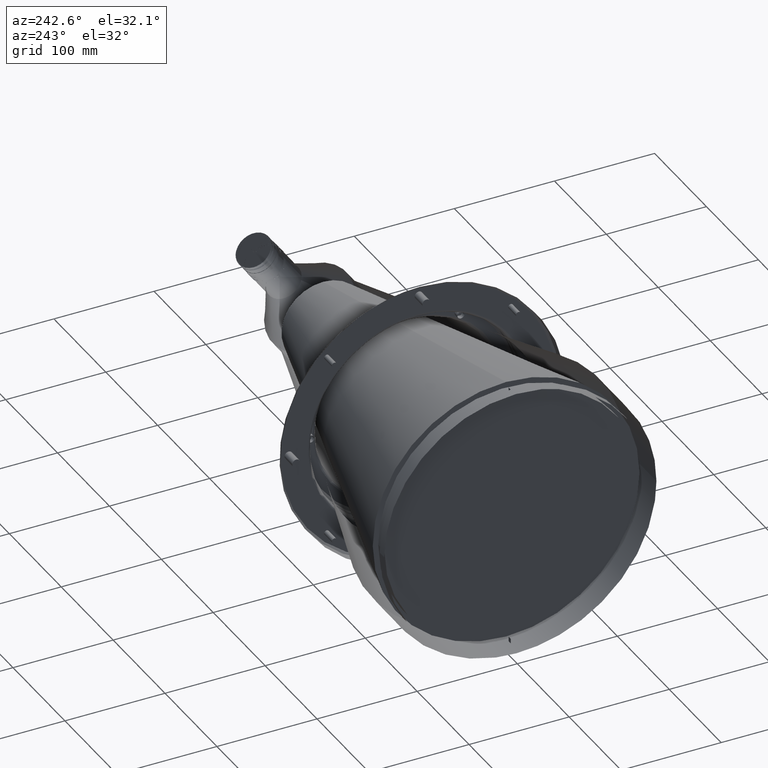
[diagram: clean part render]
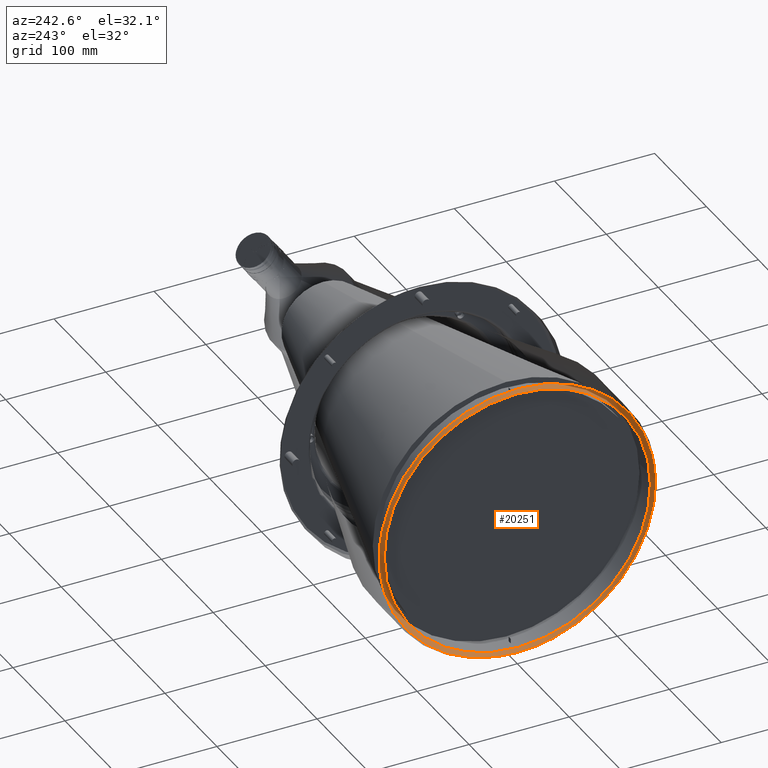
[diagram: same view with one face highlighted and labeled with its STEP entity id]
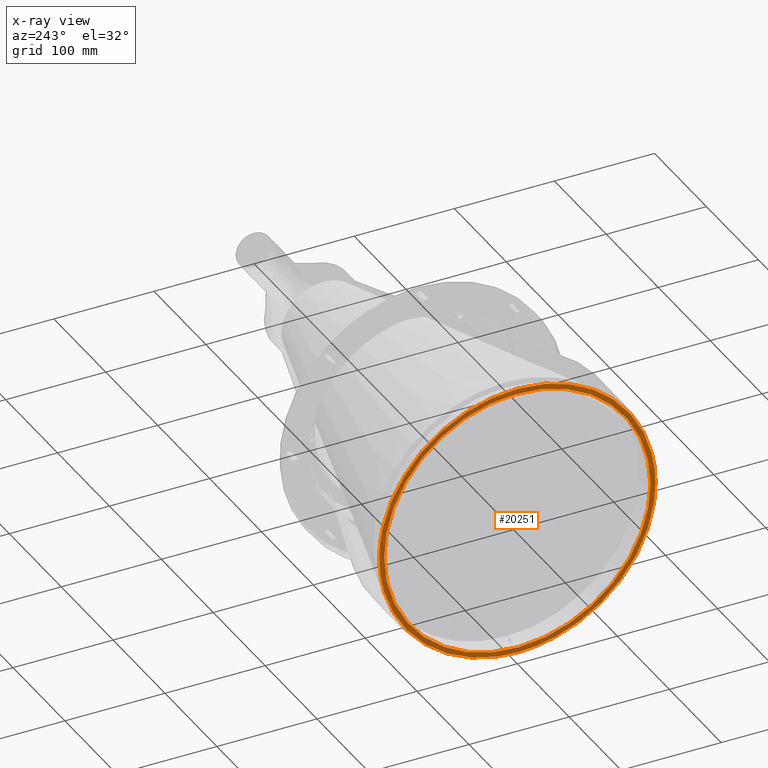
[diagram: x-ray of the same camera — body ghosted, the highlighted face saturated]
A machine part, auxiliary view. The second image highlights one B-rep face of the part: STEP entity #20251.
The next image is the same camera in x-ray: the body ghosted, the highlighted face saturated — about 0% of this face is hidden behind the body in this view.
In plain terms, the highlighted planar face has unit normal (1, 0, 0).
Its self-contained STEP definition (entity closure, byte-faithful):
#60 = CARTESIAN_POINT ( 'NONE',  ( -0.000000000000000000, 128.4407939020106255, 34.41394161928574391 ) ) ;
#148 = CARTESIAN_POINT ( 'NONE',  ( 0.000000000000000000, -25.61821668178403044, 135.6175165710562851 ) ) ;
#928 = CARTESIAN_POINT ( 'NONE',  ( 0.000000000000000000, -137.2344223669452106, 14.66684422491645634 ) ) ;
#943 = CARTESIAN_POINT ( 'NONE',  ( 0.000000000000000000, -131.4884286504362763, -41.94042315112187680 ) ) ;
#1068 = CARTESIAN_POINT ( 'NONE',  ( 5.912110145901629652E-10, 138.0000000010252279, 8.722686265973929902E-10 ) ) ;
#1184 = CARTESIAN_POINT ( 'NONE',  ( 0.000000000000000000, -136.4227292978811761, 20.91109866266123518 ) ) ;
#1308 = CARTESIAN_POINT ( 'NONE',  ( 0.000000000000000000, -21.65885574838818073, -131.1954322898359067 ) ) ;
#1333 = CARTESIAN_POINT ( 'NONE',  ( 0.000000000000000000, 135.1927398056054130, 27.81007901559702589 ) ) ;
#1828 = CARTESIAN_POINT ( 'NONE',  ( -0.000000000000000000, 34.06013946003951531, -133.7465283515853116 ) ) ;
#1835 = CARTESIAN_POINT ( 'NONE',  ( -0.000000000000000000, 131.8334659258581496, -17.35782757019049782 ) ) ;
#2099 = CARTESIAN_POINT ( 'NONE',  ( -0.000000000000000000, 21.65886277775027580, -131.1954676206180181 ) ) ;
#2576 = B_SPLINE_CURVE_WITH_KNOTS ( 'NONE', 3,
 ( #5343, #14186, #13141, #25449, #26249, #46116 ),
 .UNSPECIFIED., .F., .F.,
 ( 4, 2, 4 ),
 ( 0.000000000000000000, 0.04629268813452622200, 0.09258537626905244400 ),
 .UNSPECIFIED. ) ;
#2594 = ORIENTED_EDGE ( 'NONE', *, *, #20509, .T. ) ;
#2732 = CARTESIAN_POINT ( 'NONE',  ( -0.000000000000000000, -8.193635235029267605, -137.8176144945063015 ) ) ;
#2883 = B_SPLINE_CURVE_WITH_KNOTS ( 'NONE', 3,
 ( #1068, #17431, #33806, #50171, #13404, #46122, #9381, #38073, #1333, #30015 ),
 .UNSPECIFIED., .F., .F.,
 ( 4, 2, 2, 2, 4 ),
 ( 0.000000000000000000, 0.01761117297375268051, 0.03522234594750536102, 0.05283351892125803806, 0.07044469189501072204 ),
 .UNSPECIFIED. ) ;
#2885 = CARTESIAN_POINT ( 'NONE',  ( -0.000000000000000000, 131.9744162334862381, -40.38500585696572642 ) ) ;
#2998 = CARTESIAN_POINT ( 'NONE',  ( -0.000000000000000000, -40.38500585717328306, -131.9744162335236410 ) ) ;
#3023 = CARTESIAN_POINT ( 'NONE',  ( -1.697925220561780080E-09, 132.8999999999999773, 4.982847499329429485E-11 ) ) ;
#3072 = B_SPLINE_CURVE_WITH_KNOTS ( 'NONE', 3,
 ( #22197, #13896, #5581, #1828, #30254, #10136, #51455, #46623, #35092, #13638, #46887, #29983, #46356, #26223, #30524, #25954, #6109, #42854, #18446, #34818, #11198, #7444, #39353, #52256, #35612, #11468, #10933, #27818, #36418, #36145, #19245, #51987, #23782, #14687, #15218, #43910, #44171, #31861, #47687, #2885, #19771, #35353, #48495, #48232, #47964, #40148, #31595, #3420, #52521, #43378, #11731, #51721 ),
 .UNSPECIFIED., .F., .F.,
 ( 4, 2, 2, 2, 2, 2, 2, 2, 2, 2, 2, 2, 2, 2, 2, 2, 2, 2, 2, 2, 2, 2, 2, 2, 2, 4 ),
 ( 0.09258537626905244400, 0.1492987902522369126, 0.1776554972438290914, 0.2060122042354212701, 0.2343689112270134212, 0.2627256182186055722, 0.2910823252101977232, 0.3194390322017898187, 0.3761524461849740097, 0.4328658601681581453, 0.4895792741513423918, 0.5179359811429344873, 0.5462926881345264718, 0.5746493951261186783, 0.6030061021177106628, 0.6313628091093026473, 0.6597195161008946318, 0.7164329300840790449, 0.7731463440672630139, 0.8015030510588552204, 0.8298597580504472049, 0.8582164650420394114, 0.8865731720336316179, 0.9149298790252238245, 0.9432865860168158090, 1.000000000000000000 ),
 .UNSPECIFIED. ) ;
#3105 = CARTESIAN_POINT ( 'NONE',  ( -0.000000000000000000, 54.59055278217290663, 126.8128483223177341 ) ) ;
#3109 = ORIENTED_EDGE ( 'NONE', *, *, #38242, .T. ) ;
#3287 = CARTESIAN_POINT ( 'NONE',  ( -0.000000000000000000, -8.695131537352585482, 132.6866670147687728 ) ) ;
#3375 = CARTESIAN_POINT ( 'NONE',  ( -0.000000000000000000, 14.09327695958407212, 137.2945105908393941 ) ) ;
#3420 = CARTESIAN_POINT ( 'NONE',  ( -0.000000000000000000, 137.0425839116990687, -16.35662982615571082 ) ) ;
#3548 = CARTESIAN_POINT ( 'NONE',  ( -0.000000000000000000, 132.6866670147690570, 8.695131538608995569 ) ) ;
#3641 = CARTESIAN_POINT ( 'NONE',  ( 0.000000000000000000, 104.8429245458442267, 89.75734443646993554 ) ) ;
#3809 = CARTESIAN_POINT ( 'NONE',  ( -0.000000000000000000, 87.67525554400332055, 99.97202849422306770 ) ) ;
#3899 = CARTESIAN_POINT ( 'NONE',  ( -0.000000000000000000, -23.55141177482467185, 135.9917341099875898 ) ) ;
#4075 = CARTESIAN_POINT ( 'NONE',  ( 0.000000000000000000, 34.41393211468472657, 128.4407625628291214 ) ) ;
#4168 = CARTESIAN_POINT ( 'NONE',  ( -0.000000000000000000, -70.54766890643956856, 118.6231920991686053 ) ) ;
#4188 = CARTESIAN_POINT ( 'NONE',  ( 0.000000000000000000, -102.0161032878143317, -93.02443326274126889 ) ) ;
#4590 = CARTESIAN_POINT ( 'NONE',  ( 1.341486575031484387E-09, -136.5432461597106055, -19.99889680758062127 ) ) ;
#4711 = CARTESIAN_POINT ( 'NONE',  ( 0.000000000000000000, -63.15293375053128244, -122.7701558035917913 ) ) ;
#4933 = CARTESIAN_POINT ( 'NONE',  ( -1.697925220561780080E-09, 132.8999999999999773, 4.982847499329429485E-11 ) ) ;
#5162 = FACE_OUTER_BOUND ( 'NONE', #22728, .T. ) ;
#5224 = CARTESIAN_POINT ( 'NONE',  ( -0.000000000000000000, -34.46725236691752059, -133.6421926202634154 ) ) ;
#5343 = CARTESIAN_POINT ( 'NONE',  ( 6.027289656070121068E-10, -1.706896055986645007E-14, -138.0000000010219878 ) ) ;
#5467 = CARTESIAN_POINT ( 'NONE',  ( 0.000000000000000000, -108.2850043972621279, 85.65042409421361924 ) ) ;
#5581 = CARTESIAN_POINT ( 'NONE',  ( -0.000000000000000000, 28.08365593259351201, -135.1743410265075624 ) ) ;
#5588 = CARTESIAN_POINT ( 'NONE',  ( 0.000000000000000000, 42.74369321880987371, -125.9139554456454846 ) ) ;
#5854 = CARTESIAN_POINT ( 'NONE',  ( -0.000000000000000000, -30.19615184340132075, -129.4972952413631333 ) ) ;
#6059 = CARTESIAN_POINT ( 'NONE',  ( -0.000000000000000000, 133.6664503805918116, 34.37606262528109369 ) ) ;
#6109 = CARTESIAN_POINT ( 'NONE',  ( 0.000000000000000000, 73.47104358531457535, -116.8880338383540476 ) ) ;
#6325 = CARTESIAN_POINT ( 'NONE',  ( -0.000000000000000000, 132.5592274306712284, 38.42472828389390571 ) ) ;
#6379 = CARTESIAN_POINT ( 'NONE',  ( -0.000000000000000000, 125.9139786750542953, -42.74373509874667576 ) ) ;
#6479 = CARTESIAN_POINT ( 'NONE',  ( -0.000000000000000000, -16.35662982783611596, -137.0425839114991504 ) ) ;
#6655 = CARTESIAN_POINT ( 'NONE',  ( 0.000000000000000000, 105.4941500093786289, -80.94647938701453427 ) ) ;
#6780 = CARTESIAN_POINT ( 'NONE',  ( -1.697925220561780080E-09, -132.8999999999999773, -4.998622642607310721E-11 ) ) ;
#6868 = CARTESIAN_POINT ( 'NONE',  ( 0.000000000000000000, 134.1735730191497282, 32.34016298523741995 ) ) ;
#7315 = CARTESIAN_POINT ( 'NONE',  ( 0.000000000000000000, -66.48700942406212278, 115.1556589542360598 ) ) ;
#7400 = CARTESIAN_POINT ( 'NONE',  ( -0.000000000000000000, 78.40958872733904172, 113.5796970991251840 ) ) ;
#7444 = CARTESIAN_POINT ( 'NONE',  ( -0.000000000000000000, 97.44225042702404949, -97.74048721563558217 ) ) ;
#7557 = VERTEX_POINT ( 'NONE', #31779 ) ;
#7578 = CARTESIAN_POINT ( 'NONE',  ( 0.000000000000000000, 115.1556589541807369, 66.48700942422621551 ) ) ;
#7664 = CARTESIAN_POINT ( 'NONE',  ( 0.000000000000000000, -87.70674297488723425, 106.5642083568448015 ) ) ;
#7718 = CARTESIAN_POINT ( 'NONE',  ( 0.000000000000000000, -121.1180307576038189, -54.87959649435781273 ) ) ;
#7839 = CARTESIAN_POINT ( 'NONE',  ( -0.000000000000000000, 77.45410287932837434, 108.0843136773688684 ) ) ;
#7931 = CARTESIAN_POINT ( 'NONE',  ( 0.000000000000000000, 24.48111171181885837, 135.8274350421868064 ) ) ;
#8104 = CARTESIAN_POINT ( 'NONE',  ( 0.000000000000000000, 99.97200317872859898, 87.67523476897289925 ) ) ;
#8197 = CARTESIAN_POINT ( 'NONE',  ( -0.000000000000000000, -59.44327274889314339, 124.5589493482974319 ) ) ;
#8215 = CARTESIAN_POINT ( 'NONE',  ( 0.000000000000000000, -96.28139726270100596, -98.88426311413559233 ) ) ;
#8457 = CARTESIAN_POINT ( 'NONE',  ( 0.000000000000000000, 65.89424629458655147, 121.2697436888730778 ) ) ;
#8475 = CARTESIAN_POINT ( 'NONE',  ( -0.000000000000000000, -112.3194339383256022, -80.28180432957920232 ) ) ;
#8736 = CARTESIAN_POINT ( 'NONE',  ( 0.000000000000000000, -72.06306459353785954, -117.7078631816502536 ) ) ;
#9000 = CARTESIAN_POINT ( 'NONE',  ( 0.000000000000000000, -129.4913457806612200, -47.75160844209984390 ) ) ;
#9239 = CARTESIAN_POINT ( 'NONE',  ( 0.000000000000000000, -125.6875879899443902, 57.01805209264812646 ) ) ;
#9381 = CARTESIAN_POINT ( 'NONE',  ( 0.000000000000000000, 136.5241168078631233, 20.28974601618120133 ) ) ;
#9618 = CARTESIAN_POINT ( 'NONE',  ( -0.000000000000000000, 99.97202849449982409, -87.67525554360651086 ) ) ;
#9718 = FACE_BOUND ( 'NONE', #43645, .T. ) ;
#9884 = CARTESIAN_POINT ( 'NONE',  ( 0.000000000000000000, 54.87959649419052255, -121.1180307577402431 ) ) ;
#10136 = CARTESIAN_POINT ( 'NONE',  ( -0.000000000000000000, 39.98151117245998165, -132.0972126025828857 ) ) ;
#10146 = CARTESIAN_POINT ( 'NONE',  ( 0.000000000000000000, -34.41396353490189597, -128.4407513207275713 ) ) ;
#10413 = CARTESIAN_POINT ( 'NONE',  ( 0.000000000000000000, -58.81025641100195855, -119.2589670712533945 ) ) ;
#10675 = CARTESIAN_POINT ( 'NONE',  ( 0.000000000000000000, -108.0843036058042230, -77.45405605940683813 ) ) ;
#10777 = CARTESIAN_POINT ( 'NONE',  ( 0.000000000000000000, -38.41890234766105294, -132.5601449734127186 ) ) ;
#10933 = CARTESIAN_POINT ( 'NONE',  ( 0.000000000000000000, 107.0578360728931528, -87.10233762398176793 ) ) ;
#11198 = CARTESIAN_POINT ( 'NONE',  ( 0.000000000000000000, 93.02443326242546107, -102.0161032878891945 ) ) ;
#11331 = CARTESIAN_POINT ( 'NONE',  ( -0.000000000000000000, 66.48702486235359288, 115.1556878357319391 ) ) ;
#11422 = CARTESIAN_POINT ( 'NONE',  ( -0.000000000000000000, -90.90735679195569219, 103.8473975690020978 ) ) ;
#11468 = CARTESIAN_POINT ( 'NONE',  ( -0.000000000000000000, 105.7511918474654493, -88.68418866353616181 ) ) ;
#11596 = CARTESIAN_POINT ( 'NONE',  ( 0.000000000000000000, 21.65882337634905497, 131.1954403983514510 ) ) ;
#11684 = CARTESIAN_POINT ( 'NONE',  ( 0.000000000000000000, -72.34278703040524761, 117.5370245481542639 ) ) ;
#11731 = CARTESIAN_POINT ( 'NONE',  ( -0.000000000000000000, 138.0000000009699477, -4.101366408664305574 ) ) ;
#11862 = CARTESIAN_POINT ( 'NONE',  ( 0.000000000000000000, -119.2589842282480816, 58.81022778575875520 ) ) ;
#11952 = CARTESIAN_POINT ( 'NONE',  ( 0.000000000000000000, 12.00100520724969400, 137.4932219711184871 ) ) ;
#12009 = CARTESIAN_POINT ( 'NONE',  ( -0.000000000000000000, -119.2589988401419561, -58.81027339373068230 ) ) ;
#12128 = CARTESIAN_POINT ( 'NONE',  ( 0.000000000000000000, -54.87962791723066402, 121.1180195140651392 ) ) ;
#12219 = CARTESIAN_POINT ( 'NONE',  ( -0.000000000000000000, 67.73254390346494347, 120.2527359052614315 ) ) ;
#12236 = CARTESIAN_POINT ( 'NONE',  ( 0.000000000000000000, -127.2357566906142097, -53.47205233749576081 ) ) ;
#12483 = CARTESIAN_POINT ( 'NONE',  ( 0.000000000000000000, 81.82695134407755688, 111.1430823912360637 ) ) ;
#12736 = CARTESIAN_POINT ( 'NONE',  ( -0.000000000000000000, -124.8062853456470975, 58.92220609125895692 ) ) ;
#12754 = CARTESIAN_POINT ( 'NONE',  ( 0.000000000000000000, -87.10233762369033172, -107.0578360733061061 ) ) ;
#12840 = EDGE_CURVE ( 'NONE', #7557, #13879, #2883, .T. ) ;
#13018 = CARTESIAN_POINT ( 'NONE',  ( -0.000000000000000000, -133.7465283515053613, -34.06013946085074195 ) ) ;
#13141 = CARTESIAN_POINT ( 'NONE',  ( -0.000000000000000000, 6.689144565867422010, -137.8784811816391027 ) ) ;
#13263 = CARTESIAN_POINT ( 'NONE',  ( -0.000000000000000000, -133.4282031933128962, 35.28947039304586752 ) ) ;
#13280 = CARTESIAN_POINT ( 'NONE',  ( -0.000000000000000000, -78.92424173116705788, -113.2217837424102100 ) ) ;
#13404 = CARTESIAN_POINT ( 'NONE',  ( 0.000000000000000000, 137.4370046213084038, 12.70990639799095945 ) ) ;
#13479 = DIRECTION ( 'NONE',  ( 1.000000000000000000, 0.000000000000000000, 0.000000000000000000 ) ) ;
#13638 = CARTESIAN_POINT ( 'NONE',  ( -0.000000000000000000, 51.57470420258488275, -128.0165964319457430 ) ) ;
#13645 = CARTESIAN_POINT ( 'NONE',  ( 0.000000000000000000, -70.21649186372862061, -112.9202893919646726 ) ) ;
#13791 = CARTESIAN_POINT ( 'NONE',  ( -0.000000000000000000, -136.9953592448837298, 16.75382987654889178 ) ) ;
#13879 = VERTEX_POINT ( 'NONE', #44482 ) ;
#13896 = CARTESIAN_POINT ( 'NONE',  ( 0.000000000000000000, 24.05193157855004671, -135.9496681051631413 ) ) ;
#13904 = CARTESIAN_POINT ( 'NONE',  ( -0.000000000000000000, 70.21651187734080679, -112.9203193441026798 ) ) ;
#14021 = CARTESIAN_POINT ( 'NONE',  ( 0.000000000000000000, -131.1954355490526041, 21.65883936216405914 ) ) ;
#14169 = CARTESIAN_POINT ( 'NONE',  ( -0.000000000000000000, -97.05202515867142665, -90.89698275300283115 ) ) ;
#14186 = CARTESIAN_POINT ( 'NONE',  ( 0.000000000000000000, 3.347506788957276935, -138.0000000009749215 ) ) ;
#14377 = CARTESIAN_POINT ( 'NONE',  ( 0.000000000000000000, 117.2744359224602988, 72.85848547826925881 ) ) ;
#14434 = CARTESIAN_POINT ( 'NONE',  ( 0.000000000000000000, 66.48697925504585271, -115.1556732233982245 ) ) ;
#14642 = CARTESIAN_POINT ( 'NONE',  ( -0.000000000000000000, 112.6253866306888654, 79.85717021162115259 ) ) ;
#14687 = CARTESIAN_POINT ( 'NONE',  ( -0.000000000000000000, 120.8380028437643006, -66.77555398425774058 ) ) ;
#14696 = CARTESIAN_POINT ( 'NONE',  ( 0.000000000000000000, 112.9203092729199938, -70.21646505687435535 ) ) ;
#14795 = CARTESIAN_POINT ( 'NONE',  ( 0.000000000000000000, -20.41685324044776095, -136.4968130887677944 ) ) ;
#14995 = ORIENTED_EDGE ( 'NONE', *, *, #38616, .T. ) ;
#15021 = EDGE_CURVE ( 'NONE', #24970, #41927, #16081, .T. ) ;
#15088 = CARTESIAN_POINT ( 'NONE',  ( 0.000000000000000000, -132.8999999999999773, 4.352455105379729794 ) ) ;
#15218 = CARTESIAN_POINT ( 'NONE',  ( 0.000000000000000000, 122.7701558036409040, -63.15293375034048040 ) ) ;
#15226 = CARTESIAN_POINT ( 'NONE',  ( -0.000000000000000000, -132.6866833915766790, -8.694981975011645048 ) ) ;
#15354 = CARTESIAN_POINT ( 'NONE',  ( -0.000000000000000000, -115.1556878355915359, 66.48702486250324739 ) ) ;
#15445 = CARTESIAN_POINT ( 'NONE',  ( -0.000000000000000000, -86.07387018331557726, 107.8874352180945095 ) ) ;
#15604 = CARTESIAN_POINT ( 'NONE',  ( -0.000000000000000000, -137.0278488518633253, -16.69059446280801851 ) ) ;
#15621 = CARTESIAN_POINT ( 'NONE',  ( -0.000000000000000000, -34.41394162029766335, 128.4407939018150557 ) ) ;
#15707 = CARTESIAN_POINT ( 'NONE',  ( -0.000000000000000000, 42.80638136170181696, 131.2602392752137632 ) ) ;
#15880 = CARTESIAN_POINT ( 'NONE',  ( -0.000000000000000000, -70.21648325240981592, 112.9203365015574434 ) ) ;
#15965 = CARTESIAN_POINT ( 'NONE',  ( -0.000000000000000000, 106.1967957008379102, 88.15125512450249801 ) ) ;
#16081 = B_SPLINE_CURVE_WITH_KNOTS ( 'NONE', 3,
 ( #43388, #46895, #42343, #1835, #51200, #18724, #34826, #6379, #34298, #22987, #22204, #34558, #14696, #38572, #6655, #9618, #30531, #17926, #25962, #50672, #34037, #13904, #14434, #30262, #9884, #22718, #5588, #46630, #38824, #2099, #50409, #21937, #18454, #39088, #38306, #26230, #1308, #5854, #10146, #18186, #30799, #47157, #10413, #51466, #13645, #26751, #42599, #50935, #29990, #14169, #31060, #26497, #10675, #27026, #28089, #12009, #7718, #28358, #47972, #35362, #43661, #31329, #52265, #15226, #24057, #23792 ),
 .UNSPECIFIED., .F., .F.,
 ( 4, 2, 2, 2, 2, 2, 2, 2, 2, 2, 2, 2, 2, 2, 2, 2, 2, 2, 2, 2, 2, 2, 2, 2, 2, 2, 2, 2, 2, 2, 2, 2, 4 ),
 ( 0.5000000000000000000, 0.5156250000000000000, 0.5312500000000000000, 0.5468750000000000000, 0.5625000000000000000, 0.5781250000000000000, 0.5937500000000000000, 0.6093750000000000000, 0.6250000000000000000, 0.6406250000000000000, 0.6562500000000000000, 0.6718750000000000000, 0.6875000000000000000, 0.7031250000000000000, 0.7187500000000000000, 0.7343750000000000000, 0.7500000000000000000, 0.7656250000000000000, 0.7812500000000000000, 0.7968750000000000000, 0.8125000000000000000, 0.8281250000000000000, 0.8437500000000000000, 0.8593750000000000000, 0.8750000000000000000, 0.8906250000000000000, 0.9062500000000000000, 0.9218750000000000000, 0.9375000000000000000, 0.9531250000000000000, 0.9687500000000000000, 0.9843750000000000000, 1.000000000000000000 ),
 .UNSPECIFIED. ) ;
#16146 = CARTESIAN_POINT ( 'NONE',  ( 0.000000000000000000, -4.352305556209210557, 132.8999836257002016 ) ) ;
#16147 = VERTEX_POINT ( 'NONE', #25648 ) ;
#16239 = CARTESIAN_POINT ( 'NONE',  ( -0.000000000000000000, -31.79013603041980218, 134.3541752273262944 ) ) ;
#16410 = CARTESIAN_POINT ( 'NONE',  ( 0.000000000000000000, 121.1180195136824835, 54.87962791812452679 ) ) ;
#16501 = CARTESIAN_POINT ( 'NONE',  ( 0.000000000000000000, -77.63065755820269942, 114.1134913260201671 ) ) ;
#16782 = CARTESIAN_POINT ( 'NONE',  ( -0.000000000000000000, -122.9205974279798141, -62.75933342215346755 ) ) ;
#17046 = CARTESIAN_POINT ( 'NONE',  ( -0.000000000000000000, -135.1743410263745488, -28.08365593378812264 ) ) ;
#17296 = CARTESIAN_POINT ( 'NONE',  ( -0.000000000000000000, -97.74048721525726080, -97.44225042759059363 ) ) ;
#17431 = CARTESIAN_POINT ( 'NONE',  ( 0.000000000000000000, 138.0000000009700045, 2.546990614048323831 ) ) ;
#17545 = CARTESIAN_POINT ( 'NONE',  ( 0.000000000000000000, -122.9571342918519434, 62.68940554069461513 ) ) ;
#17808 = CARTESIAN_POINT ( 'NONE',  ( 0.000000000000000000, -135.3269035891422334, 27.11146304888261582 ) ) ;
#17926 = CARTESIAN_POINT ( 'NONE',  ( -0.000000000000000000, 90.89696984040311634, -97.05203575591248466 ) ) ;
#18186 = CARTESIAN_POINT ( 'NONE',  ( -0.000000000000000000, -42.74370367923940961, -125.9139899169235122 ) ) ;
#18339 = EDGE_CURVE ( 'NONE', #41927, #24970, #25975, .T. ) ;
#18402 = CARTESIAN_POINT ( 'NONE',  ( 0.000000000000000000, 127.7245391918158077, 52.29573608829438314 ) ) ;
#18446 = CARTESIAN_POINT ( 'NONE',  ( 0.000000000000000000, 83.57862747348065113, -109.8883002100641306 ) ) ;
#18454 = CARTESIAN_POINT ( 'NONE',  ( 0.000000000000000000, 4.352272222047130157, -132.8999819883081273 ) ) ;
#18548 = CARTESIAN_POINT ( 'NONE',  ( -0.000000000000000000, -4.101366410205684154, -138.0000000009745236 ) ) ;
#18724 = CARTESIAN_POINT ( 'NONE',  ( -0.000000000000000000, 129.4972871328290012, -30.19618421543802000 ) ) ;
#19020 = CARTESIAN_POINT ( 'NONE',  ( -1.697925220561780080E-09, -132.8999999999999773, -4.998622642607310721E-11 ) ) ;
#19245 = CARTESIAN_POINT ( 'NONE',  ( 0.000000000000000000, 114.3821177006974210, -77.23293311452009391 ) ) ;
#19380 = CARTESIAN_POINT ( 'NONE',  ( -0.000000000000000000, -125.9139786743691189, 42.74373510054594760 ) ) ;
#19465 = CARTESIAN_POINT ( 'NONE',  ( -0.000000000000000000, -4.775831873367671676, 137.9333994126001244 ) ) ;
#19643 = CARTESIAN_POINT ( 'NONE',  ( 0.000000000000000000, -42.74372559403334293, 125.9139473357768253 ) ) ;
#19731 = CARTESIAN_POINT ( 'NONE',  ( 0.000000000000000000, -0.5787325899803076323, 138.0147448782914807 ) ) ;
#19771 = CARTESIAN_POINT ( 'NONE',  ( 0.000000000000000000, 132.5601449734230357, -38.41890234748672128 ) ) ;
#19900 = CARTESIAN_POINT ( 'NONE',  ( -0.000000000000000000, -90.89695802556458659, 97.05204757077896716 ) ) ;
#19991 = CARTESIAN_POINT ( 'NONE',  ( 0.000000000000000000, 60.29376893007656690, 124.1494859182880646 ) ) ;
#20165 = CARTESIAN_POINT ( 'NONE',  ( -0.000000000000000000, -99.97202849449978146, 87.67525554366613960 ) ) ;
#20251 = ADVANCED_FACE ( 'NONE', ( #9718, #5162 ), #50242, .T. ) ;
#20253 = CARTESIAN_POINT ( 'NONE',  ( -0.000000000000000000, 32.69638473459164629, 134.0872114739054553 ) ) ;
#20429 = CARTESIAN_POINT ( 'NONE',  ( 0.000000000000000000, -112.9203092724852411, 70.21646505746386424 ) ) ;
#20509 = EDGE_CURVE ( 'NONE', #21116, #16147, #39840, .T. ) ;
#20519 = CARTESIAN_POINT ( 'NONE',  ( -0.000000000000000000, -17.32650040968654181, 136.9241341078467542 ) ) ;
#20535 = CARTESIAN_POINT ( 'NONE',  ( -0.000000000000000000, -93.30393079566222525, -101.6985931970703660 ) ) ;
#20799 = CARTESIAN_POINT ( 'NONE',  ( -0.000000000000000000, -132.0972126022266764, -39.98151117390174392 ) ) ;
#21044 = CARTESIAN_POINT ( 'NONE',  ( -0.000000000000000000, -129.6568227613175281, 47.30267603215782657 ) ) ;
#21062 = CARTESIAN_POINT ( 'NONE',  ( -0.000000000000000000, -128.0165964314660414, -51.57470420402129463 ) ) ;
#21116 = VERTEX_POINT ( 'NONE', #32772 ) ;
#21306 = CARTESIAN_POINT ( 'NONE',  ( -0.000000000000000000, -99.99312655531943506, 95.13042850158907981 ) ) ;
#21322 = CARTESIAN_POINT ( 'NONE',  ( -0.000000000000000000, -104.7323651925756849, -89.95515931159263801 ) ) ;
#21507 = B_SPLINE_CURVE_WITH_KNOTS ( 'NONE', 3,
 ( #25073, #49527, #17046, #13018, #45732, #20799, #943, #45207, #9000, #21062, #12236, #40913, #45999, #16782, #25333, #28581, #44947, #8475, #41706, #21322, #4188, #17296, #8215, #20535, #33675, #24814, #12754, #36913, #29103, #13280, #50046, #45466, #8736, #41442, #4711, #41970, #31163, #26593, #47529, #2998, #10777, #5224, #35462, #27123, #43488, #51566, #14795, #6479, #30630, #2732, #18548, #21574 ),
 .UNSPECIFIED., .F., .F.,
 ( 4, 2, 2, 2, 2, 2, 2, 2, 2, 2, 2, 2, 2, 2, 2, 2, 2, 2, 2, 2, 2, 2, 2, 2, 2, 4 ),
 ( 0.09258537627606561182, 0.1492987902588113758, 0.1776554972501842578, 0.2060122042415571675, 0.2343689112329300772, 0.2627256182243029592, 0.2910823252156757857, 0.3194390322070488342, 0.3761524461897946536, 0.4328658601725405841, 0.4895792741552864036, 0.5179359811466595076, 0.5462926881380324451, 0.5746493951294053826, 0.6030061021207784311, 0.6313628091121514796, 0.6597195161035243061, 0.7164329300862701810, 0.7731463440690160560, 0.8015030510603888825, 0.8298597580517621530, 0.8582164650431349795, 0.8865731720345080280, 0.9149298790258810765, 0.9432865860172539030, 1.000000000000000000 ),
 .UNSPECIFIED. ) ;
#21557 = CARTESIAN_POINT ( 'NONE',  ( 0.000000000000000000, -128.1584960282846737, 51.22315400391206452 ) ) ;
#21574 = CARTESIAN_POINT ( 'NONE',  ( 6.027289656070121068E-10, -1.706896055986645007E-14, -138.0000000010219878 ) ) ;
#21817 = CARTESIAN_POINT ( 'NONE',  ( 0.000000000000000000, -97.05273073022229369, 98.12833176718129380 ) ) ;
#21937 = CARTESIAN_POINT ( 'NONE',  ( -0.000000000000000000, 8.695164872699340464, -132.6866653768495041 ) ) ;
#22060 = CARTESIAN_POINT ( 'NONE',  ( -0.000000000000000000, -132.6866295268946203, 8.695161342510710156 ) ) ;
#22197 = CARTESIAN_POINT ( 'NONE',  ( 1.337790636725743629E-09, 19.99889680756453103, -136.5432461596798817 ) ) ;
#22204 = CARTESIAN_POINT ( 'NONE',  ( 0.000000000000000000, 119.2589842282480816, -58.81022778569884935 ) ) ;
#22718 = CARTESIAN_POINT ( 'NONE',  ( -0.000000000000000000, 46.83765982854225740, -124.4491489837228357 ) ) ;
#22728 = EDGE_LOOP ( 'NONE', ( #26287, #3109, #2594, #51952, #14995, #33855 ) ) ;
#22987 = CARTESIAN_POINT ( 'NONE',  ( -0.000000000000000000, 121.1180497700383398, -54.87964044958533805 ) ) ;
#23197 = CARTESIAN_POINT ( 'NONE',  ( 0.000000000000000000, 129.9773164540940797, 46.41478808368994891 ) ) ;
#23379 = CARTESIAN_POINT ( 'NONE',  ( -0.000000000000000000, 42.74373509945639427, 125.9139786748202710 ) ) ;
#23649 = CARTESIAN_POINT ( 'NONE',  ( -0.000000000000000000, -46.83762840550193118, 124.4491602273963480 ) ) ;
#23734 = CARTESIAN_POINT ( 'NONE',  ( 0.000000000000000000, 96.22680451427410731, 98.93844014703049083 ) ) ;
#23782 = CARTESIAN_POINT ( 'NONE',  ( 0.000000000000000000, 117.7078631809557265, -72.06306459439053924 ) ) ;
#23792 = CARTESIAN_POINT ( 'NONE',  ( -1.697925220561780080E-09, -132.8999999999999773, -4.998622642607310721E-11 ) ) ;
#23838 = CARTESIAN_POINT ( 'NONE',  ( 1.337790636725743629E-09, 19.99889680756453103, -136.5432461596798817 ) ) ;
#23916 = CARTESIAN_POINT ( 'NONE',  ( 0.000000000000000000, 125.9139473355817813, 42.74372559504467262 ) ) ;
#24003 = CARTESIAN_POINT ( 'NONE',  ( -0.000000000000000000, -81.06489072313084421, 111.7001207769915965 ) ) ;
#24057 = CARTESIAN_POINT ( 'NONE',  ( -0.000000000000000000, -132.8999999999999488, -4.352822658412112133 ) ) ;
#24178 = CARTESIAN_POINT ( 'NONE',  ( -0.000000000000000000, -21.65882976319613107, 131.1954725181216190 ) ) ;
#24273 = CARTESIAN_POINT ( 'NONE',  ( 0.000000000000000000, 76.67101096025240281, 114.7604406946658173 ) ) ;
#24427 = CARTESIAN_POINT ( 'NONE',  ( -0.000000000000000000, -137.3924059041956980, -13.36068209668116680 ) ) ;
#24441 = CARTESIAN_POINT ( 'NONE',  ( -0.000000000000000000, 112.9203365017191345, 70.21648325216794717 ) ) ;
#24534 = CARTESIAN_POINT ( 'NONE',  ( -0.000000000000000000, 7.814674080144500934, 137.7946490522046190 ) ) ;
#24794 = CARTESIAN_POINT ( 'NONE',  ( 0.000000000000000000, -119.9682337110790371, 68.23521713494693586 ) ) ;
#24814 = CARTESIAN_POINT ( 'NONE',  ( -0.000000000000000000, -88.68418866326200600, -105.7511918478506630 ) ) ;
#24970 = VERTEX_POINT ( 'NONE', #4933 ) ;
#25073 = CARTESIAN_POINT ( 'NONE',  ( 1.341486575031484387E-09, -136.5432461597106055, -19.99889680758062127 ) ) ;
#25333 = CARTESIAN_POINT ( 'NONE',  ( 0.000000000000000000, -121.9742708475475013, -64.57919148478148941 ) ) ;
#25449 = CARTESIAN_POINT ( 'NONE',  ( -0.000000000000000000, 13.36068209559344666, -137.3924059042954866 ) ) ;
#25648 = CARTESIAN_POINT ( 'NONE',  ( 1.341486575031484387E-09, -136.5432461597106055, -19.99889680758062127 ) ) ;
#25954 = CARTESIAN_POINT ( 'NONE',  ( -0.000000000000000000, 69.96983786076786771, -119.0170226749803106 ) ) ;
#25962 = CARTESIAN_POINT ( 'NONE',  ( 0.000000000000000000, 87.67520796393374383, -99.97202305902882813 ) ) ;
#25975 = B_SPLINE_CURVE_WITH_KNOTS ( 'NONE', 3,
 ( #6780, #15088, #22060, #50787, #14021, #31726, #52381, #19380, #52909, #48626, #11862, #15354, #20429, #48362, #27688, #20165, #44042, #19900, #49152, #40012, #28211, #15880, #7315, #28475, #12128, #23649, #19643, #15621, #44574, #24178, #36268, #3287, #16146, #40536, #31989, #44835, #11596, #43780, #4075, #23379, #32524, #36012, #32250, #11331, #39747, #7839, #52646, #3809, #27948, #44308, #8104, #48896, #36543, #24441, #7578, #40799, #16410, #36808, #23916, #60, #32776, #40275, #27418, #3548, #35749, #3023 ),
 .UNSPECIFIED., .F., .F.,
 ( 4, 2, 2, 2, 2, 2, 2, 2, 2, 2, 2, 2, 2, 2, 2, 2, 2, 2, 2, 2, 2, 2, 2, 2, 2, 2, 2, 2, 2, 2, 2, 2, 4 ),
 ( 0.000000000000000000, 0.01562499999999998612, 0.03124999999999996531, 0.04687499999999994449, 0.06249999999999992367, 0.07812499999999993061, 0.09374999999999995837, 0.1093749999999999861, 0.1250000000000000000, 0.1406250000000000278, 0.1562500000000000833, 0.1718750000000001110, 0.1875000000000001388, 0.2031250000000001388, 0.2187500000000001665, 0.2343750000000001665, 0.2500000000000002220, 0.2656250000000002220, 0.2812500000000001665, 0.2968750000000001665, 0.3125000000000001665, 0.3281250000000001665, 0.3437500000000001110, 0.3593750000000001110, 0.3750000000000001110, 0.3906250000000001110, 0.4062500000000000555, 0.4218750000000000555, 0.4375000000000000555, 0.4531250000000000555, 0.4687500000000000000, 0.4843750000000000000, 0.5000000000000000000 ),
 .UNSPECIFIED. ) ;
#26067 = CARTESIAN_POINT ( 'NONE',  ( 0.000000000000000000, 0.000000000000000000, 140.1337029009999924 ) ) ;
#26223 = CARTESIAN_POINT ( 'NONE',  ( -0.000000000000000000, 62.75933342045593122, -122.9205974286769703 ) ) ;
#26230 = CARTESIAN_POINT ( 'NONE',  ( -0.000000000000000000, -17.35779455843738006, -131.8334708224317069 ) ) ;
#26249 = CARTESIAN_POINT ( 'NONE',  ( 0.000000000000000000, 16.69059446295751670, -137.0278488517681126 ) ) ;
#26287 = ORIENTED_EDGE ( 'NONE', *, *, #12840, .T. ) ;
#26497 = CARTESIAN_POINT ( 'NONE',  ( -0.000000000000000000, -105.4941554443851146, -80.94652696731969854 ) ) ;
#26593 = CARTESIAN_POINT ( 'NONE',  ( -0.000000000000000000, -46.22098001697623459, -130.0455633985614838 ) ) ;
#26751 = CARTESIAN_POINT ( 'NONE',  ( -0.000000000000000000, -77.45407607279901185, -108.0843335581073603 ) ) ;
#27026 = CARTESIAN_POINT ( 'NONE',  ( -0.000000000000000000, -112.9203193441570079, -70.21651187728615184 ) ) ;
#27123 = CARTESIAN_POINT ( 'NONE',  ( -0.000000000000000000, -28.48398230774940032, -135.0439312975372559 ) ) ;
#27418 = CARTESIAN_POINT ( 'NONE',  ( 0.000000000000000000, 131.8334333346909375, 17.35782436108658899 ) ) ;
#27688 = CARTESIAN_POINT ( 'NONE',  ( 0.000000000000000000, -105.4941500093786573, 80.94647938695349865 ) ) ;
#27771 = CARTESIAN_POINT ( 'NONE',  ( -0.000000000000000000, 62.17429322269903480, 123.2184224852010885 ) ) ;
#27818 = CARTESIAN_POINT ( 'NONE',  ( -0.000000000000000000, 109.5966683331207605, -83.88559860018061443 ) ) ;
#27948 = CARTESIAN_POINT ( 'NONE',  ( 0.000000000000000000, 90.89693486859530935, 97.05202441388981072 ) ) ;
#28036 = CARTESIAN_POINT ( 'NONE',  ( 0.000000000000000000, -92.47555055006880309, 102.4534426868146397 ) ) ;
#28089 = CARTESIAN_POINT ( 'NONE',  ( 0.000000000000000000, -115.1556732236040830, -66.48697925470730752 ) ) ;
#28211 = CARTESIAN_POINT ( 'NONE',  ( 0.000000000000000000, -77.45408468428300353, 108.0842864484033186 ) ) ;
#28299 = CARTESIAN_POINT ( 'NONE',  ( -0.000000000000000000, -11.06008757374840279, 137.5721205175514683 ) ) ;
#28358 = CARTESIAN_POINT ( 'NONE',  ( -0.000000000000000000, -124.4491489838581799, -46.83765982837518749 ) ) ;
#28475 = CARTESIAN_POINT ( 'NONE',  ( -0.000000000000000000, -58.81024322437571072, 119.2590131095093682 ) ) ;
#28562 = CARTESIAN_POINT ( 'NONE',  ( -0.000000000000000000, -53.70035902857421206, 127.1403771248074435 ) ) ;
#28581 = CARTESIAN_POINT ( 'NONE',  ( -0.000000000000000000, -119.0170226733922192, -69.96983786366290303 ) ) ;
#28821 = CARTESIAN_POINT ( 'NONE',  ( 0.000000000000000000, 91.61550986654035000, 103.2232058192952593 ) ) ;
#29087 = CARTESIAN_POINT ( 'NONE',  ( 0.000000000000000000, -133.9492516973750185, 33.25707430507883799 ) ) ;
#29103 = CARTESIAN_POINT ( 'NONE',  ( 0.000000000000000000, -82.24997942155323472, -110.8294578672205546 ) ) ;
#29349 = CARTESIAN_POINT ( 'NONE',  ( 7.079766115364170203E-10, -138.0000000009082157, -3.832528374480404635E-10 ) ) ;
#29618 = CARTESIAN_POINT ( 'NONE',  ( -0.000000000000000000, -134.8984460130184004, 29.16884771187778824 ) ) ;
#29877 = CARTESIAN_POINT ( 'NONE',  ( -0.000000000000000000, -121.9886442393091670, 64.55364633061466861 ) ) ;
#29983 = CARTESIAN_POINT ( 'NONE',  ( -0.000000000000000000, 57.22586508874306332, -125.5922942977267240 ) ) ;
#29990 = CARTESIAN_POINT ( 'NONE',  ( 0.000000000000000000, -90.89695728064278057, -97.05199968645221986 ) ) ;
#30015 = CARTESIAN_POINT ( 'NONE',  ( 2.071489661855694902E-09, 134.6341765834932573, 30.29268973094877992 ) ) ;
#30254 = CARTESIAN_POINT ( 'NONE',  ( 0.000000000000000000, 36.04127827284976604, -133.2262901784618805 ) ) ;
#30262 = CARTESIAN_POINT ( 'NONE',  ( -0.000000000000000000, 58.81027339339195947, -119.2589988403488661 ) ) ;
#30475 = CARTESIAN_POINT ( 'NONE',  ( 0.000000000000000000, 131.9587087430328438, 40.43888212973870111 ) ) ;
#30524 = CARTESIAN_POINT ( 'NONE',  ( 0.000000000000000000, 64.57919148373511575, -121.9742708479706863 ) ) ;
#30531 = CARTESIAN_POINT ( 'NONE',  ( 0.000000000000000000, 97.05201259905149413, -90.89694668340251837 ) ) ;
#30630 = CARTESIAN_POINT ( 'NONE',  ( 0.000000000000000000, -14.31839209419150194, -137.2704579751017206 ) ) ;
#30799 = CARTESIAN_POINT ( 'NONE',  ( 0.000000000000000000, -46.83764603978926999, -124.4491157040451554 ) ) ;
#31007 = CARTESIAN_POINT ( 'NONE',  ( 2.071489661855694902E-09, 134.6341765834932573, 30.29268973094877992 ) ) ;
#31060 = CARTESIAN_POINT ( 'NONE',  ( 0.000000000000000000, -99.97202305936723121, -87.67520796345435485 ) ) ;
#31163 = CARTESIAN_POINT ( 'NONE',  ( 0.000000000000000000, -51.97973335089771751, -127.9019124229433828 ) ) ;
#31329 = CARTESIAN_POINT ( 'NONE',  ( -0.000000000000000000, -131.1954676203986594, -21.65886277882350797 ) ) ;
#31552 = CARTESIAN_POINT ( 'NONE',  ( -0.000000000000000000, 119.4344418556198804, 69.26088740207923422 ) ) ;
#31595 = CARTESIAN_POINT ( 'NONE',  ( 0.000000000000000000, 136.4968130890493683, -20.41685323825598886 ) ) ;
#31726 = CARTESIAN_POINT ( 'NONE',  ( -0.000000000000000000, -129.4972919821453843, 30.19616822962512259 ) ) ;
#31779 = CARTESIAN_POINT ( 'NONE',  ( 5.912110145901629652E-10, 138.0000000010252279, 8.722686265973929902E-10 ) ) ;
#31815 = CARTESIAN_POINT ( 'NONE',  ( -0.000000000000000000, 1.523064103336951858, 138.0075643516618982 ) ) ;
#31861 = CARTESIAN_POINT ( 'NONE',  ( -0.000000000000000000, 130.0455633985220345, -46.22098001651821875 ) ) ;
#31989 = CARTESIAN_POINT ( 'NONE',  ( 0.000000000000000000, 8.695128329421132563, 132.6866344236168800 ) ) ;
#32075 = CARTESIAN_POINT ( 'NONE',  ( -0.000000000000000000, -65.06268983805762218, 121.7179048368717105 ) ) ;
#32152 = VERTEX_POINT ( 'NONE', #44982 ) ;
#32250 = CARTESIAN_POINT ( 'NONE',  ( 0.000000000000000000, 58.81022778590921263, 119.2589842281070673 ) ) ;
#32338 = CARTESIAN_POINT ( 'NONE',  ( 0.000000000000000000, 38.78831290556857425, 132.5031783411229185 ) ) ;
#32524 = CARTESIAN_POINT ( 'NONE',  ( 0.000000000000000000, 46.83761587269586357, 124.4491299716709989 ) ) ;
#32608 = CARTESIAN_POINT ( 'NONE',  ( 0.000000000000000000, 71.35731192619806507, 118.1379249152541320 ) ) ;
#32772 = CARTESIAN_POINT ( 'NONE',  ( 7.079766115364170203E-10, -138.0000000009082157, -3.832528374480404635E-10 ) ) ;
#32776 = CARTESIAN_POINT ( 'NONE',  ( 0.000000000000000000, 129.4972550132884237, 30.19617782749545398 ) ) ;
#32870 = CARTESIAN_POINT ( 'NONE',  ( 0.000000000000000000, -55.62894775713304085, 126.3085157103221690 ) ) ;
#33133 = CARTESIAN_POINT ( 'NONE',  ( 0.000000000000000000, -132.2932034927080451, 39.33082815171329116 ) ) ;
#33675 = CARTESIAN_POINT ( 'NONE',  ( 0.000000000000000000, -91.78448907577444515, -103.0719789438133773 ) ) ;
#33806 = CARTESIAN_POINT ( 'NONE',  ( -0.000000000000000000, 137.9296514271179603, 5.090583592431615401 ) ) ;
#33855 = ORIENTED_EDGE ( 'NONE', *, *, #46504, .T. ) ;
#33920 = CARTESIAN_POINT ( 'NONE',  ( -0.000000000000000000, -137.8086055924638060, 8.393347061522185015 ) ) ;
#34037 = CARTESIAN_POINT ( 'NONE',  ( 0.000000000000000000, 77.45405605935202686, -108.0843036058594180 ) ) ;
#34186 = CARTESIAN_POINT ( 'NONE',  ( -0.000000000000000000, -118.9169786062252570, 70.05130575349913613 ) ) ;
#34267 = EDGE_CURVE ( 'NONE', #16147, #32152, #21507, .T. ) ;
#34298 = CARTESIAN_POINT ( 'NONE',  ( 0.000000000000000000, 124.4491299714996586, -46.83761587296464768 ) ) ;
#34558 = CARTESIAN_POINT ( 'NONE',  ( -0.000000000000000000, 115.1556878355914932, -66.48702486256416933 ) ) ;
#34773 = CARTESIAN_POINT ( 'NONE',  ( -0.000000000000000000, 125.2497012974969834, 58.08762855538976311 ) ) ;
#34818 = CARTESIAN_POINT ( 'NONE',  ( -0.000000000000000000, 89.95515931107659924, -104.7323651928184063 ) ) ;
#34826 = CARTESIAN_POINT ( 'NONE',  ( 0.000000000000000000, 128.4407625625956939, -34.41393211539530483 ) ) ;
#35092 = CARTESIAN_POINT ( 'NONE',  ( 0.000000000000000000, 47.75160844049405995, -129.4913457811688886 ) ) ;
#35276 = B_SPLINE_CURVE_WITH_KNOTS ( 'NONE', 3,
 ( #31007, #6868, #6059, #6325, #30475, #46836, #23197, #42803, #18402, #34773, #51407, #31552, #14377, #14642, #39305, #15965, #3641, #44129, #40101, #40364, #23734, #48184, #28821, #36363, #36897, #52739, #12483, #7400, #24273, #45190, #32608, #12219, #8457, #27771, #19991, #3105, #36628, #15707, #32338, #20253, #48716, #44930, #7931, #44398, #53001, #3375, #11952, #24534, #39836, #31815, #19731, #19465, #36103, #28299, #40628, #20519, #44664, #3899, #148, #16239, #52476, #48981, #35836, #28562, #32870, #8197, #40895, #32075, #52213, #4168, #11684, #48449, #16501, #24003, #49243, #15445, #7664, #11422, #28036, #41953, #21817, #21306, #42217, #49510, #5467, #38188, #37685, #34186, #24794, #29877, #17545, #12736, #9239, #45715, #21557, #21044, #37933, #50287, #33133, #13263, #29087, #29618, #17808, #50561, #1184, #13791, #928, #33920, #45447, #29349 ),
 .UNSPECIFIED., .F., .F.,
 ( 4, 2, 2, 2, 2, 2, 2, 2, 2, 2, 2, 2, 2, 2, 2, 2, 2, 2, 2, 2, 2, 2, 2, 2, 2, 2, 2, 2, 2, 2, 2, 2, 2, 2, 2, 2, 2, 2, 2, 2, 2, 2, 2, 2, 2, 2, 2, 2, 2, 2, 2, 2, 2, 2, 4 ),
 ( 0.07044469189501072204, 0.08496899358415112291, 0.09949329527329150991, 0.1140175969624319108, 0.1285418986515723117, 0.1575905020298531134, 0.1866391054081339429, 0.2156877087864148002, 0.2302120104755552288, 0.2447363121646956574, 0.2592606138538361416, 0.2737849155429765702, 0.2883092172321169988, 0.3028335189212574829, 0.3173578206103979671, 0.3318821222995383957, 0.3464064239886788243, 0.3609307256778192530, 0.3899793290561001102, 0.4190279324343808565, 0.4335522341235212851, 0.4480765358126617692, 0.4626008375018022534, 0.4771251391909426820, 0.4916494408800831661, 0.5061737425692235393, 0.5206980442583639679, 0.5352223459475042855, 0.5497466476366447141, 0.5642709493257851427, 0.5933195527040660000, 0.6223681560823468573, 0.6368924577714873969, 0.6514167594606278255, 0.6659410611497684762, 0.6804653628389089048, 0.6949896645280493335, 0.7095139662171898731, 0.7240382679063304128, 0.7385625695954709524, 0.7530868712846113810, 0.7676111729737518097, 0.7966597763520330000, 0.8257083797303139683, 0.8402326814194545079, 0.8547569831085950476, 0.8692812847977354762, 0.8838055864868760159, 0.8983298881760164445, 0.9128541898651570952, 0.9273784915542975238, 0.9419027932434379524, 0.9564270949325784921, 0.9709513966217190317, 1.000000000000000000 ),
 .UNSPECIFIED. ) ;
#35353 = CARTESIAN_POINT ( 'NONE',  ( -0.000000000000000000, 133.6421926203330486, -34.46725236668725501 ) ) ;
#35362 = CARTESIAN_POINT ( 'NONE',  ( -0.000000000000000000, -128.4407857921244158, -34.41397399465732576 ) ) ;
#35462 = CARTESIAN_POINT ( 'NONE',  ( 0.000000000000000000, -32.48026835893519859, -134.1389498850883513 ) ) ;
#35612 = CARTESIAN_POINT ( 'NONE',  ( 0.000000000000000000, 103.0719789434822786, -91.78448907597568507 ) ) ;
#35749 = CARTESIAN_POINT ( 'NONE',  ( 0.000000000000000000, 132.8999836257005143, 4.352305556141003784 ) ) ;
#35836 = CARTESIAN_POINT ( 'NONE',  ( 0.000000000000000000, -47.86022831417125190, 129.5031099293011607 ) ) ;
#36012 = CARTESIAN_POINT ( 'NONE',  ( -0.000000000000000000, 54.87964044985332634, 121.1180497698664027 ) ) ;
#36103 = CARTESIAN_POINT ( 'NONE',  ( 0.000000000000000000, -6.872102870121298501, 137.8448745404521389 ) ) ;
#36145 = CARTESIAN_POINT ( 'NONE',  ( -0.000000000000000000, 113.2217837421599427, -78.92424173129577980 ) ) ;
#36268 = CARTESIAN_POINT ( 'NONE',  ( 0.000000000000000000, -17.35782436234342185, 131.8334333346908807 ) ) ;
#36363 = CARTESIAN_POINT ( 'NONE',  ( -0.000000000000000000, 88.43389567927930273, 105.9615568749861723 ) ) ;
#36418 = CARTESIAN_POINT ( 'NONE',  ( 0.000000000000000000, 110.8294578669741242, -82.24997942164341680 ) ) ;
#36527 = CARTESIAN_POINT ( 'NONE',  ( 0.000000000000000000, -137.8784811816145179, -6.689144565660563480 ) ) ;
#36543 = CARTESIAN_POINT ( 'NONE',  ( 0.000000000000000000, 108.0842864482421106, 77.45408468452424700 ) ) ;
#36628 = CARTESIAN_POINT ( 'NONE',  ( 0.000000000000000000, 50.70247485733543868, 128.4168768704332138 ) ) ;
#36711 = AXIS2_PLACEMENT_3D ( 'NONE', #26067, #13479, #49982 ) ;
#36808 = CARTESIAN_POINT ( 'NONE',  ( -0.000000000000000000, 124.4491602277795295, 46.83762840460747157 ) ) ;
#36897 = CARTESIAN_POINT ( 'NONE',  ( 0.000000000000000000, 86.81001697306591325, 107.2959815239395169 ) ) ;
#36913 = CARTESIAN_POINT ( 'NONE',  ( -0.000000000000000000, -83.88559860005788948, -109.5966683333997622 ) ) ;
#37685 = CARTESIAN_POINT ( 'NONE',  ( 0.000000000000000000, -115.6400637694477922, 75.42548125831400796 ) ) ;
#37933 = CARTESIAN_POINT ( 'NONE',  ( 0.000000000000000000, -130.3609069448893933, 45.32622323087305460 ) ) ;
#38073 = CARTESIAN_POINT ( 'NONE',  ( -0.000000000000000000, 135.6832327130658484, 25.30889016680895409 ) ) ;
#38188 = CARTESIAN_POINT ( 'NONE',  ( -0.000000000000000000, -113.2889342488911382, 78.91293919006673718 ) ) ;
#38242 = EDGE_CURVE ( 'NONE', #13879, #21116, #35276, .T. ) ;
#38306 = CARTESIAN_POINT ( 'NONE',  ( 0.000000000000000000, -8.695161341060902771, -132.6866295270484102 ) ) ;
#38572 = CARTESIAN_POINT ( 'NONE',  ( -0.000000000000000000, 108.0843136771519966, -77.45410287965366081 ) ) ;
#38616 = EDGE_CURVE ( 'NONE', #32152, #49502, #2576, .T. ) ;
#38824 = CARTESIAN_POINT ( 'NONE',  ( 0.000000000000000000, 30.19614481423413821, -129.4972599105421125 ) ) ;
#39088 = CARTESIAN_POINT ( 'NONE',  ( -0.000000000000000000, -4.352272221947830033, -132.9000180116928789 ) ) ;
#39305 = CARTESIAN_POINT ( 'NONE',  ( 0.000000000000000000, 110.1462406361704183, 83.24339937525603261 ) ) ;
#39353 = CARTESIAN_POINT ( 'NONE',  ( 0.000000000000000000, 98.88426311364843002, -96.28139726301763801 ) ) ;
#39747 = CARTESIAN_POINT ( 'NONE',  ( 0.000000000000000000, 70.21646505719947129, 112.9203092727022408 ) ) ;
#39836 = CARTESIAN_POINT ( 'NONE',  ( 0.000000000000000000, 5.719085859361943136, 137.8975175283133012 ) ) ;
#39840 = B_SPLINE_CURVE_WITH_KNOTS ( 'NONE', 3,
 ( #52364, #48879, #36527, #24427, #15604, #4590 ),
 .UNSPECIFIED., .F., .F.,
 ( 4, 2, 4 ),
 ( 0.000000000000000000, 0.04629268813803281285, 0.09258537627606561182 ),
 .UNSPECIFIED. ) ;
#40012 = CARTESIAN_POINT ( 'NONE',  ( -0.000000000000000000, -80.94650016140425919, 105.4941753252882251 ) ) ;
#40101 = CARTESIAN_POINT ( 'NONE',  ( 0.000000000000000000, 100.6414907685021092, 94.44425519292394711 ) ) ;
#40148 = CARTESIAN_POINT ( 'NONE',  ( -0.000000000000000000, 136.1787804996517650, -22.44019854207552100 ) ) ;
#40275 = CARTESIAN_POINT ( 'NONE',  ( -0.000000000000000000, 131.1954725178707974, 21.65882976448853725 ) ) ;
#40364 = CARTESIAN_POINT ( 'NONE',  ( -0.000000000000000000, 97.72205276061318102, 97.46180072345943302 ) ) ;
#40536 = CARTESIAN_POINT ( 'NONE',  ( -0.000000000000000000, 4.352305556109968165, 132.9000163742992413 ) ) ;
#40628 = CARTESIAN_POINT ( 'NONE',  ( 0.000000000000000000, -13.15336615778288909, 137.3877395333932725 ) ) ;
#40799 = CARTESIAN_POINT ( 'NONE',  ( -0.000000000000000000, 119.2590131095652737, 58.81024322421099271 ) ) ;
#40895 = CARTESIAN_POINT ( 'NONE',  ( 0.000000000000000000, -61.33002116507807244, 123.6408271736073772 ) ) ;
#40913 = CARTESIAN_POINT ( 'NONE',  ( -0.000000000000000000, -125.5922942969547336, -57.22586509074389483 ) ) ;
#41442 = CARTESIAN_POINT ( 'NONE',  ( -0.000000000000000000, -66.77555398358231287, -120.8380028443253309 ) ) ;
#41706 = CARTESIAN_POINT ( 'NONE',  ( 0.000000000000000000, -109.8883002092057097, -83.57862747469643239 ) ) ;
#41927 = VERTEX_POINT ( 'NONE', #19020 ) ;
#41953 = CARTESIAN_POINT ( 'NONE',  ( -0.000000000000000000, -95.54771176545267508, 99.59443394590738308 ) ) ;
#41970 = CARTESIAN_POINT ( 'NONE',  ( -0.000000000000000000, -55.75975644156218181, -126.2998796428705930 ) ) ;
#42217 = CARTESIAN_POINT ( 'NONE',  ( 0.000000000000000000, -101.4278814916898028, 93.59924620040781917 ) ) ;
#42343 = CARTESIAN_POINT ( 'NONE',  ( 0.000000000000000000, 132.6866344236218538, -8.695128329308465354 ) ) ;
#42599 = CARTESIAN_POINT ( 'NONE',  ( 0.000000000000000000, -80.94650411467932827, -105.4941275977285073 ) ) ;
#42803 = CARTESIAN_POINT ( 'NONE',  ( -0.000000000000000000, 128.5059462106172816, 50.34517711256023631 ) ) ;
#42854 = CARTESIAN_POINT ( 'NONE',  ( -0.000000000000000000, 80.28180432832826341, -112.3194339391712617 ) ) ;
#43378 = CARTESIAN_POINT ( 'NONE',  ( -0.000000000000000000, 137.8176144945060173, -8.193635233446084243 ) ) ;
#43388 = CARTESIAN_POINT ( 'NONE',  ( -1.697925220561780080E-09, 132.8999999999999773, 4.982847499329429485E-11 ) ) ;
#43488 = CARTESIAN_POINT ( 'NONE',  ( 0.000000000000000000, -26.47335634592793951, -135.4524209646556017 ) ) ;
#43645 = EDGE_LOOP ( 'NONE', ( #46804, #51528 ) ) ;
#43661 = CARTESIAN_POINT ( 'NONE',  ( 0.000000000000000000, -129.4972599107605333, -30.19614481316151711 ) ) ;
#43780 = CARTESIAN_POINT ( 'NONE',  ( -0.000000000000000000, 30.19618421544056019, 129.4972871328460542 ) ) ;
#43910 = CARTESIAN_POINT ( 'NONE',  ( -0.000000000000000000, 126.2998796430219670, -55.75975644123187180 ) ) ;
#44042 = CARTESIAN_POINT ( 'NONE',  ( 0.000000000000000000, -97.05202441389003809, 90.89693486853464321 ) ) ;
#44129 = CARTESIAN_POINT ( 'NONE',  ( -0.000000000000000000, 102.0656651255482927, 92.90336393552604477 ) ) ;
#44171 = CARTESIAN_POINT ( 'NONE',  ( 0.000000000000000000, 127.9019124228591693, -51.97973335067028700 ) ) ;
#44308 = CARTESIAN_POINT ( 'NONE',  ( -0.000000000000000000, 97.05204757071889787, 90.89695802556418869 ) ) ;
#44398 = CARTESIAN_POINT ( 'NONE',  ( -0.000000000000000000, 20.34017906593787828, 136.5090196925889074 ) ) ;
#44482 = CARTESIAN_POINT ( 'NONE',  ( 2.071489661855694902E-09, 134.6341765834932573, 30.29268973094877992 ) ) ;
#44574 = CARTESIAN_POINT ( 'NONE',  ( 0.000000000000000000, -30.19617782878807333, 129.4972550130370621 ) ) ;
#44664 = CARTESIAN_POINT ( 'NONE',  ( 0.000000000000000000, -19.40610953309488096, 136.6449330231656347 ) ) ;
#44835 = CARTESIAN_POINT ( 'NONE',  ( -0.000000000000000000, 17.35782757007733323, 131.8334659258622423 ) ) ;
#44930 = CARTESIAN_POINT ( 'NONE',  ( -0.000000000000000000, 26.54590548755109225, 135.4389791163530390 ) ) ;
#44947 = CARTESIAN_POINT ( 'NONE',  ( 0.000000000000000000, -116.8880338381755593, -73.47104358600655871 ) ) ;
#44982 = CARTESIAN_POINT ( 'NONE',  ( 6.027289656070121068E-10, -1.706896055986645007E-14, -138.0000000010219878 ) ) ;
#45190 = CARTESIAN_POINT ( 'NONE',  ( -0.000000000000000000, 73.14500533755555978, 117.0394658731350006 ) ) ;
#45207 = CARTESIAN_POINT ( 'NONE',  ( -0.000000000000000000, -130.1857122244552158, -45.82475223151995181 ) ) ;
#45447 = CARTESIAN_POINT ( 'NONE',  ( -0.000000000000000000, -138.0000000009700045, 4.201454226799437919 ) ) ;
#45466 = CARTESIAN_POINT ( 'NONE',  ( -0.000000000000000000, -73.80203971235872018, -116.6253621304910695 ) ) ;
#45715 = CARTESIAN_POINT ( 'NONE',  ( -0.000000000000000000, -127.3636475133383925, 53.16863554764022126 ) ) ;
#45732 = CARTESIAN_POINT ( 'NONE',  ( 0.000000000000000000, -133.2262901783337838, -36.04127827373594783 ) ) ;
#45999 = CARTESIAN_POINT ( 'NONE',  ( 0.000000000000000000, -124.7292624444278175, -59.08332130767541912 ) ) ;
#46116 = CARTESIAN_POINT ( 'NONE',  ( 1.337790636725743629E-09, 19.99889680756453103, -136.5432461596798817 ) ) ;
#46122 = CARTESIAN_POINT ( 'NONE',  ( -0.000000000000000000, 136.8748711895115662, 17.76994926241760098 ) ) ;
#46356 = CARTESIAN_POINT ( 'NONE',  ( 0.000000000000000000, 59.08332130564231477, -124.7292624452309724 ) ) ;
#46504 = EDGE_CURVE ( 'NONE', #49502, #7557, #3072, .T. ) ;
#46623 = CARTESIAN_POINT ( 'NONE',  ( -0.000000000000000000, 45.82475222988010444, -130.1857122249552106 ) ) ;
#46630 = CARTESIAN_POINT ( 'NONE',  ( -0.000000000000000000, 34.41397399552153757, -128.4407857919475475 ) ) ;
#46804 = ORIENTED_EDGE ( 'NONE', *, *, #15021, .T. ) ;
#46836 = CARTESIAN_POINT ( 'NONE',  ( -0.000000000000000000, 130.6678689605771524, 44.43352908712564897 ) ) ;
#46887 = CARTESIAN_POINT ( 'NONE',  ( 0.000000000000000000, 53.47205233595969531, -127.2357566911557285 ) ) ;
#46895 = CARTESIAN_POINT ( 'NONE',  ( -0.000000000000000000, 132.9000163742994971, -4.352305556042194823 ) ) ;
#47157 = CARTESIAN_POINT ( 'NONE',  ( -0.000000000000000000, -54.87961028275992703, -121.1180640374938520 ) ) ;
#47529 = CARTESIAN_POINT ( 'NONE',  ( 0.000000000000000000, -44.28595140715946599, -130.7171540956363174 ) ) ;
#47687 = CARTESIAN_POINT ( 'NONE',  ( 0.000000000000000000, 130.7171540956032914, -44.28595140672077690 ) ) ;
#47964 = CARTESIAN_POINT ( 'NONE',  ( 0.000000000000000000, 135.4524209647108535, -26.47335634525349235 ) ) ;
#47972 = CARTESIAN_POINT ( 'NONE',  ( 0.000000000000000000, -125.9139554454676073, -42.74369321967464685 ) ) ;
#48184 = CARTESIAN_POINT ( 'NONE',  ( -0.000000000000000000, 93.17409163353931945, 101.8185824737041543 ) ) ;
#48232 = CARTESIAN_POINT ( 'NONE',  ( -0.000000000000000000, 135.0439312975752841, -28.48398230745984705 ) ) ;
#48362 = CARTESIAN_POINT ( 'NONE',  ( -0.000000000000000000, -108.0843136775863798, 77.45410287906332769 ) ) ;
#48449 = CARTESIAN_POINT ( 'NONE',  ( -0.000000000000000000, -75.88390179027878446, 115.2824266867043121 ) ) ;
#48495 = CARTESIAN_POINT ( 'NONE',  ( 0.000000000000000000, 134.1389498851634698, -32.48026835868189011 ) ) ;
#48626 = CARTESIAN_POINT ( 'NONE',  ( -0.000000000000000000, -121.1180497696586258, 54.87964045035517557 ) ) ;
#48716 = CARTESIAN_POINT ( 'NONE',  ( 0.000000000000000000, 30.65403179571993775, 134.5687694200993008 ) ) ;
#48879 = CARTESIAN_POINT ( 'NONE',  ( -0.000000000000000000, -138.0000000009692087, -3.347506788731337224 ) ) ;
#48896 = CARTESIAN_POINT ( 'NONE',  ( -0.000000000000000000, 105.4941753250238179, 80.94650016180011676 ) ) ;
#48981 = CARTESIAN_POINT ( 'NONE',  ( -0.000000000000000000, -43.90256771272873237, 130.8977298944577683 ) ) ;
#49152 = CARTESIAN_POINT ( 'NONE',  ( 0.000000000000000000, -87.67523476936932525, 99.97200317846363760 ) ) ;
#49243 = CARTESIAN_POINT ( 'NONE',  ( 0.000000000000000000, -82.75353324815343115, 110.4549095554064309 ) ) ;
#49502 = VERTEX_POINT ( 'NONE', #23838 ) ;
#49510 = CARTESIAN_POINT ( 'NONE',  ( -0.000000000000000000, -105.6258173722658995, 88.90900729170854788 ) ) ;
#49527 = CARTESIAN_POINT ( 'NONE',  ( 0.000000000000000000, -135.9496681051694509, -24.05193157843157081 ) ) ;
#49982 = DIRECTION ( 'NONE',  ( 0.000000000000000000, 1.000000000000000000, 0.000000000000000000 ) ) ;
#50046 = CARTESIAN_POINT ( 'NONE',  ( 0.000000000000000000, -77.23293311433847919, -114.3821177009710794 ) ) ;
#50171 = CARTESIAN_POINT ( 'NONE',  ( -0.000000000000000000, 137.6482571317095278, 10.17097427986809777 ) ) ;
#50242 = PLANE ( 'NONE',  #36711 ) ;
#50287 = CARTESIAN_POINT ( 'NONE',  ( -0.000000000000000000, -131.6789169461439428, 41.34088999748801996 ) ) ;
#50409 = CARTESIAN_POINT ( 'NONE',  ( 0.000000000000000000, 17.35779102699665444, -131.8334349726115136 ) ) ;
#50561 = CARTESIAN_POINT ( 'NONE',  ( -0.000000000000000000, -136.0890381667329052, 22.98262529712793523 ) ) ;
#50672 = CARTESIAN_POINT ( 'NONE',  ( -0.000000000000000000, 80.94652696683988324, -105.4941554447241714 ) ) ;
#50787 = CARTESIAN_POINT ( 'NONE',  ( -0.000000000000000000, -131.8334708225849852, 17.35779455698725471 ) ) ;
#50935 = CARTESIAN_POINT ( 'NONE',  ( -0.000000000000000000, -87.67523081594092105, -99.97205090615051404 ) ) ;
#51200 = CARTESIAN_POINT ( 'NONE',  ( 0.000000000000000000, 131.1954403983689872, -21.65882337635200727 ) ) ;
#51407 = CARTESIAN_POINT ( 'NONE',  ( 0.000000000000000000, 123.4254162964868300, 61.86917983067105098 ) ) ;
#51455 = CARTESIAN_POINT ( 'NONE',  ( 0.000000000000000000, 41.94042314951498440, -131.4884286508771538 ) ) ;
#51466 = CARTESIAN_POINT ( 'NONE',  ( -0.000000000000000000, -66.48699623726064090, -115.1557049925867062 ) ) ;
#51528 = ORIENTED_EDGE ( 'NONE', *, *, #18339, .T. ) ;
#51566 = CARTESIAN_POINT ( 'NONE',  ( -0.000000000000000000, -22.44019854406611358, -136.1787804993990960 ) ) ;
#51721 = CARTESIAN_POINT ( 'NONE',  ( 5.912110145901629652E-10, 138.0000000010252279, 8.722686265973929902E-10 ) ) ;
#51952 = ORIENTED_EDGE ( 'NONE', *, *, #34267, .T. ) ;
#51987 = CARTESIAN_POINT ( 'NONE',  ( -0.000000000000000000, 116.6253621298629639, -73.80203971310081101 ) ) ;
#52213 = CARTESIAN_POINT ( 'NONE',  ( 0.000000000000000000, -66.90831117045036081, 120.7132644417758343 ) ) ;
#52256 = CARTESIAN_POINT ( 'NONE',  ( -0.000000000000000000, 101.6985931967188606, -93.30393079587200589 ) ) ;
#52265 = CARTESIAN_POINT ( 'NONE',  ( 0.000000000000000000, -131.8334169578833723, -17.35797392468534284 ) ) ;
#52364 = CARTESIAN_POINT ( 'NONE',  ( 7.079766115364170203E-10, -138.0000000009082157, -3.832528374480404635E-10 ) ) ;
#52381 = CARTESIAN_POINT ( 'NONE',  ( 0.000000000000000000, -128.4407625632809129, 34.41393211359447690 ) ) ;
#52476 = CARTESIAN_POINT ( 'NONE',  ( 0.000000000000000000, -35.85846752651777081, 133.3259951357579496 ) ) ;
#52521 = CARTESIAN_POINT ( 'NONE',  ( 0.000000000000000000, 137.2704579751140272, -14.31839209386974510 ) ) ;
#52646 = CARTESIAN_POINT ( 'NONE',  ( 0.000000000000000000, 80.94647938661690034, 105.4941500096548168 ) ) ;
#52739 = CARTESIAN_POINT ( 'NONE',  ( -0.000000000000000000, 83.50703699322292550, 109.8863392761988962 ) ) ;
#52909 = CARTESIAN_POINT ( 'NONE',  ( 0.000000000000000000, -124.4491299718793726, 46.83761587219341749 ) ) ;
#53001 = CARTESIAN_POINT ( 'NONE',  ( 0.000000000000000000, 18.26261211549091357, 136.8024348023193966 ) ) ;